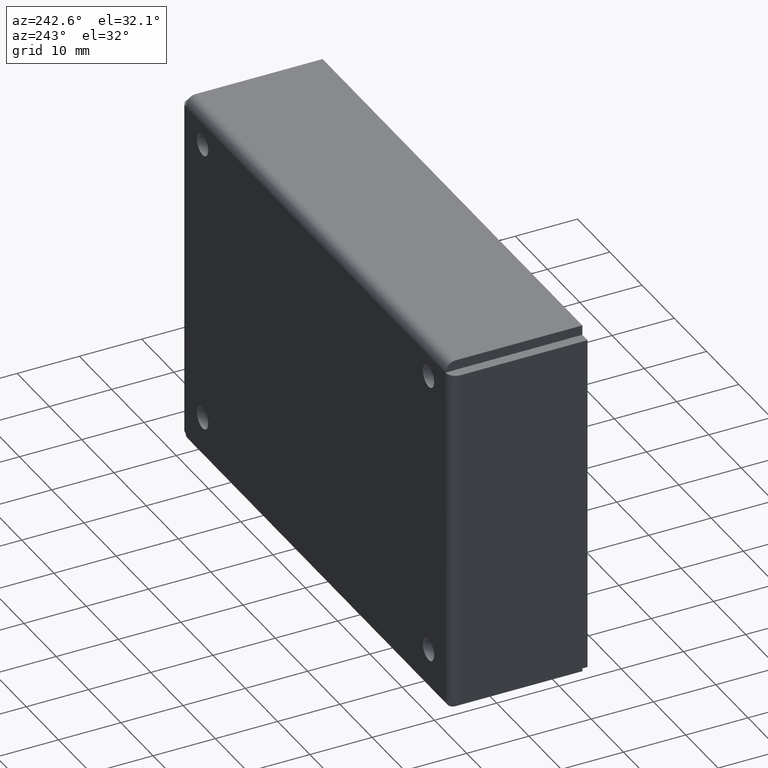
[diagram: clean part render]
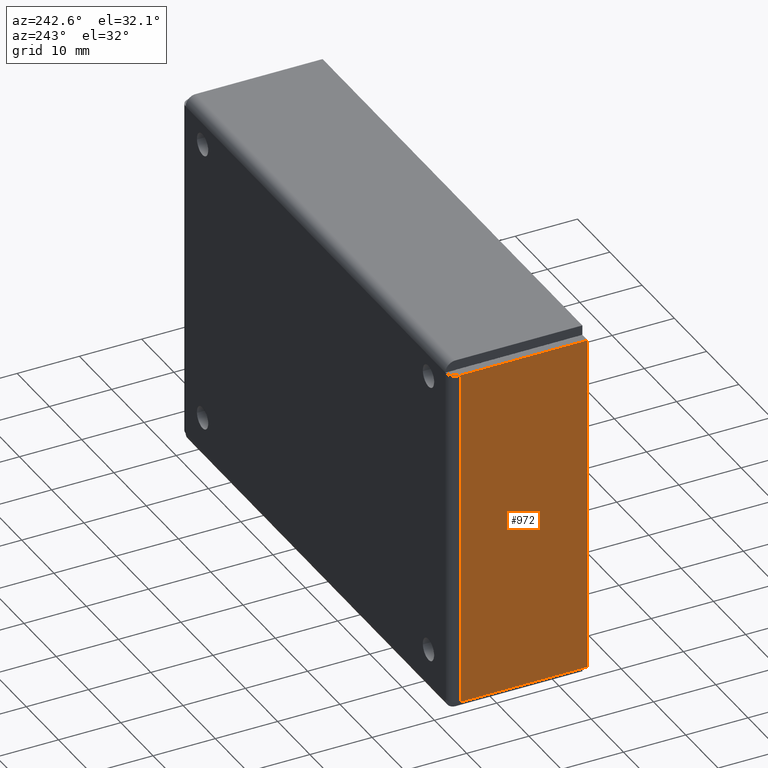
[diagram: same view with one face highlighted and labeled with its STEP entity id]
A machine part, auxiliary view. The second image highlights one B-rep face of the part: STEP entity #972.
In plain terms, the highlighted face is a freeform B-spline surface patch.
Its self-contained STEP definition (entity closure, byte-faithful):
#849=CARTESIAN_POINT('',(-41.850000000000001,56.768048000000000,58.500000000000000));
#850=VERTEX_POINT('',#849);
#871=CARTESIAN_POINT('',(-41.850000000000001,56.768048000000000,3.500000000000000));
#872=VERTEX_POINT('',#871);
#886=CARTESIAN_POINT('',(-41.850000000000001,56.768048000000000,58.500000000000000));
#887=CARTESIAN_POINT('',(-41.850000000000001,56.768048000000000,3.500000000000000));
#888=QUASI_UNIFORM_CURVE('',1,(#886,#887),.UNSPECIFIED.,.F.,.U.);
#889=EDGE_CURVE('',#850,#872,#888,.T.);
#901=CARTESIAN_POINT('',(-41.850000000000001,36.368047999999952,58.500000000000000));
#902=VERTEX_POINT('',#901);
#908=CARTESIAN_POINT('',(-41.850000000000001,36.368047999999952,3.500000000000000));
#909=VERTEX_POINT('',#908);
#910=CARTESIAN_POINT('',(-41.850000000000001,36.368047999999952,58.500000000000000));
#911=CARTESIAN_POINT('',(-41.850000000000001,36.368047999999952,3.500000000000000));
#912=QUASI_UNIFORM_CURVE('',1,(#910,#911),.UNSPECIFIED.,.F.,.U.);
#913=EDGE_CURVE('',#902,#909,#912,.T.);
#935=CARTESIAN_POINT('',(-41.850000000000001,36.368047999999952,3.500000000000000));
#936=CARTESIAN_POINT('',(-41.850000000000001,56.768048000000000,3.500000000000000));
#937=QUASI_UNIFORM_CURVE('',1,(#935,#936),.UNSPECIFIED.,.F.,.U.);
#938=EDGE_CURVE('',#909,#872,#937,.T.);
#957=CARTESIAN_POINT('',(-41.850000000000001,35.349069835927693,61.247249893399342));
#958=CARTESIAN_POINT('',(-41.850000000000001,35.349069835927693,0.752748631385711));
#959=CARTESIAN_POINT('',(-41.850000000000001,57.787026893633140,61.247249893399342));
#960=CARTESIAN_POINT('',(-41.850000000000001,57.787026893633140,0.752748631385711));
#961=B_SPLINE_SURFACE_WITH_KNOTS('',1,1,((#957,#959),(#958,#960)),.UNSPECIFIED.,.F.,.F.,.U.,(2,2),(2,2),(0.0,60.494501262013628),(0.0,22.437957057705450),.UNSPECIFIED.);
#962=CARTESIAN_POINT('',(-41.850000000000001,36.368047999999952,58.500000000000000));
#963=CARTESIAN_POINT('',(-41.850000000000001,56.768048000000000,58.500000000000000));
#964=QUASI_UNIFORM_CURVE('',1,(#962,#963),.UNSPECIFIED.,.F.,.U.);
#965=EDGE_CURVE('',#902,#850,#964,.T.);
#966=ORIENTED_EDGE('',*,*,#965,.T.);
#967=ORIENTED_EDGE('',*,*,#889,.T.);
#968=ORIENTED_EDGE('',*,*,#938,.F.);
#969=ORIENTED_EDGE('',*,*,#913,.F.);
#970=EDGE_LOOP('',(#966,#967,#968,#969));
#971=FACE_OUTER_BOUND('',#970,.T.);
#972=ADVANCED_FACE('',(#971),#961,.F.);